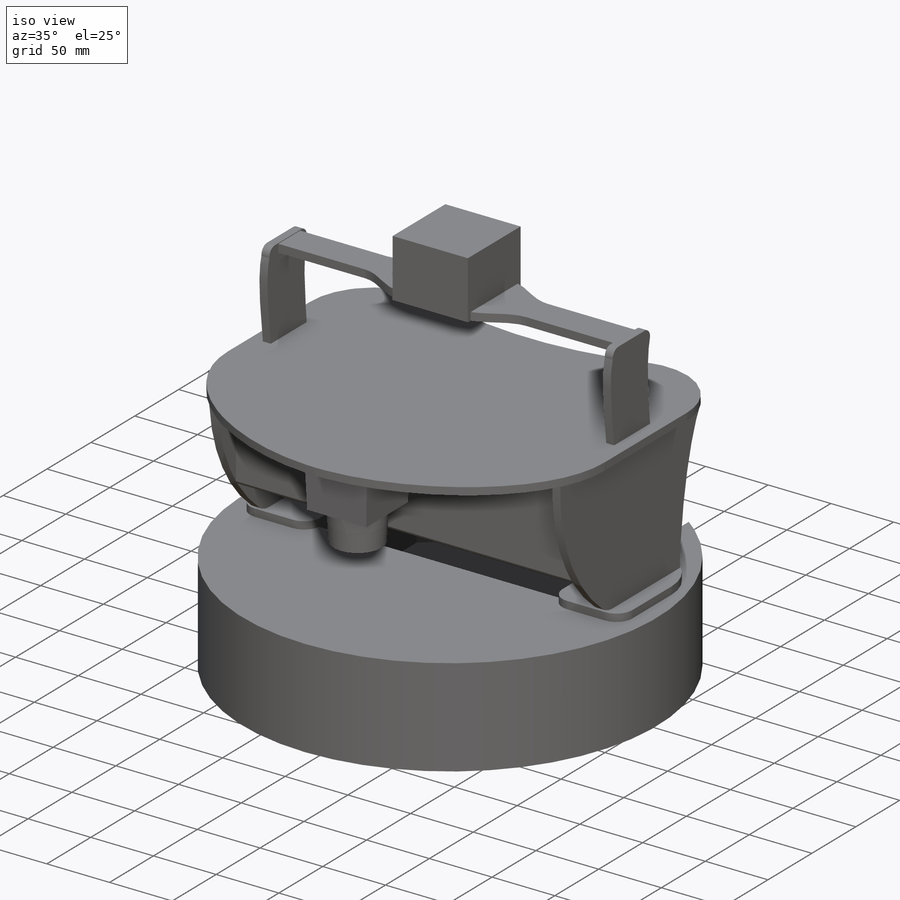
[diagram: iso view]
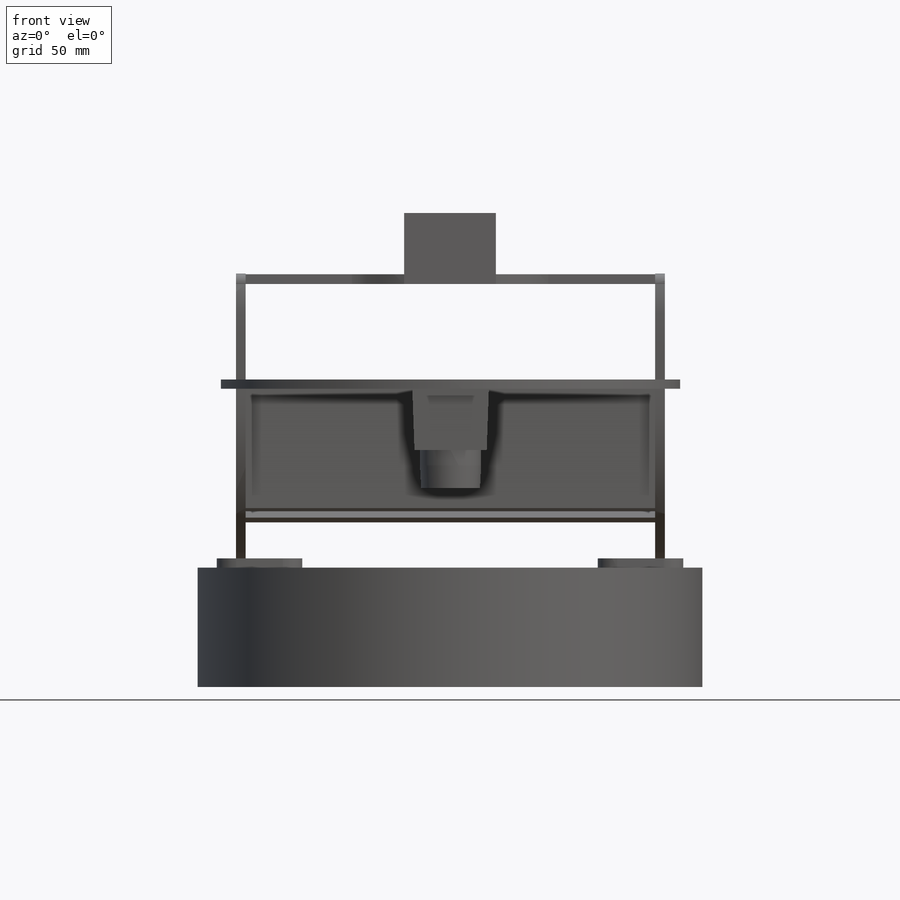
[diagram: front view]
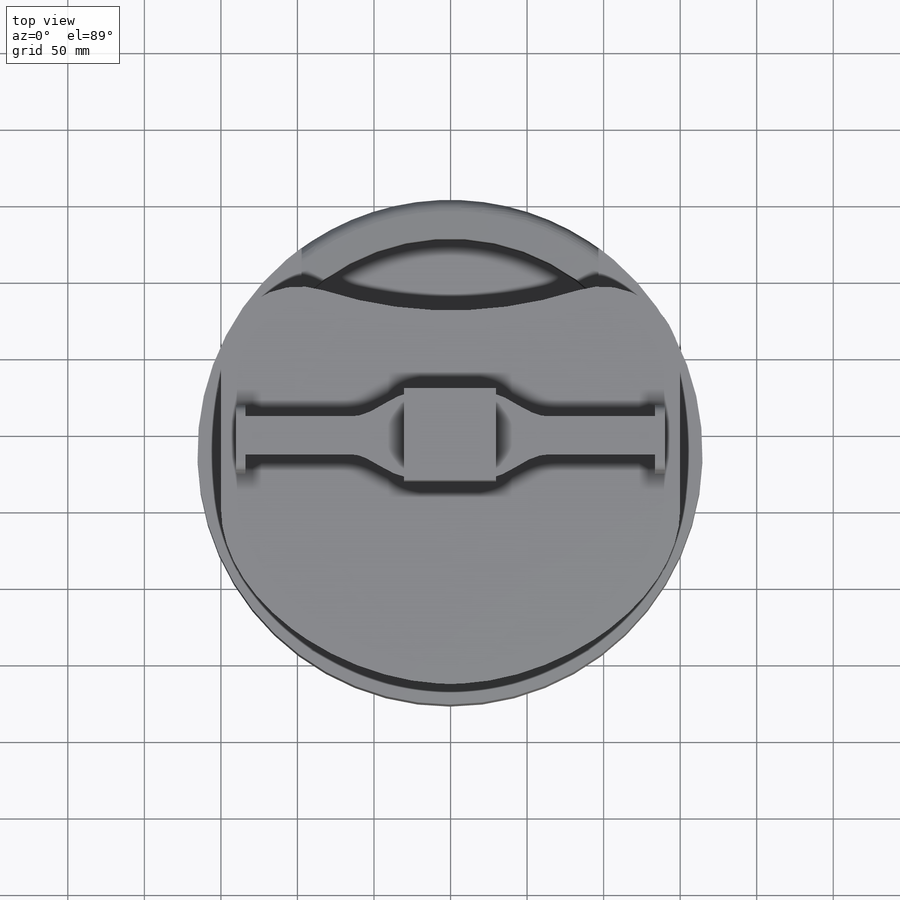
[diagram: top view]
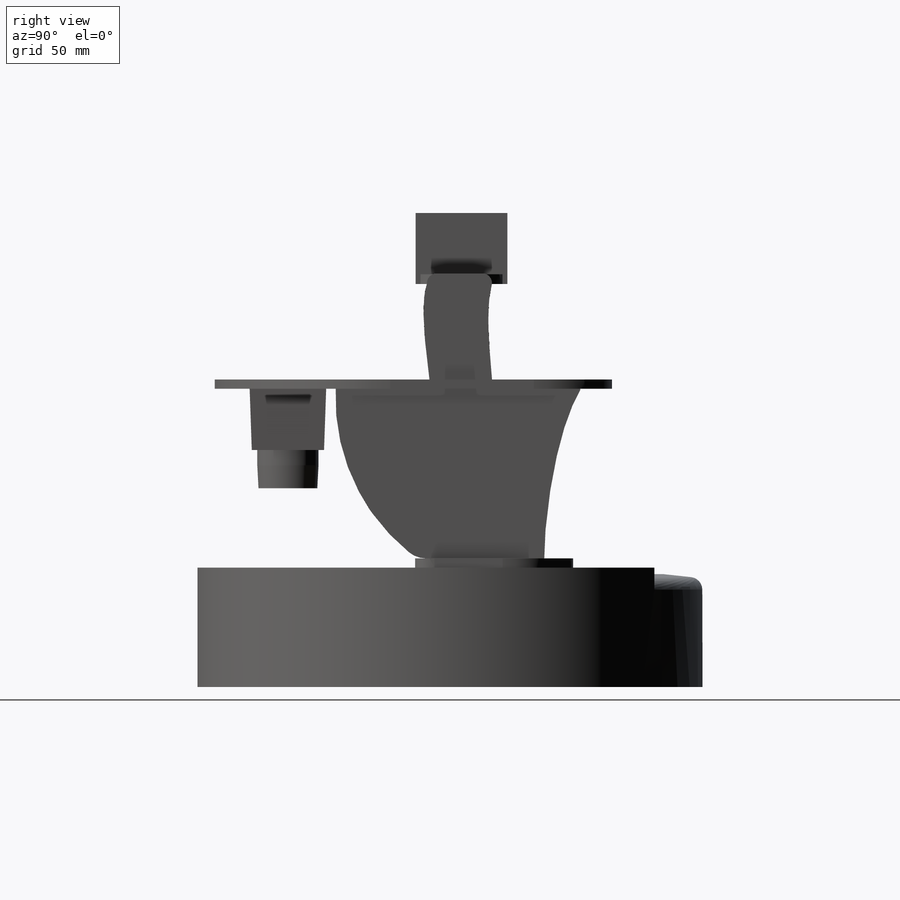
[diagram: right view]
SOLIDWORKS PART (.sldprt)
format: sldprt  version: not decoded by parser v0  size: 2,142,208 bytes
history: native  units: mm
features: move_body x27, sketch x20, extrude x13, thread x12, cut_extrude x5, material x1, plane x1, revolve x1 + 15 further entries (+49 scaffold rows collapsed; 28 parser-record rows omitted)
feature tree (172):
  scaffold x49  (default folders/planes/origin — collapsed)
  material  "Material <not specified>"
  "topbase"
  parser-record x28  (decoder bookkeeping rows leaked as tree rows — omitted from the tree; the rows remain in map.json)
  move_body  "Body-Move/Copy6"
  sketch  "Sketch18"  dims[D1=0.0mm]
  "sidewall"
  "Axes6"
  move_body  "Body-Move/Copy8"
  move_body  "Coincident10"
  move_body  "Coincident12"
  move_body  "Coincident13"
  "sidewall1"
  "Axes7"
  move_body  "Body-Move/Copy10"
  move_body  "Coincident15"
  move_body  "Coincident16"
  move_body  "Coincident17"
  "toppart"
  "Axes8"
  move_body  "Body-Move/Copy12"
  move_body  "Coincident18"
  move_body  "Coincident19"
  move_body  "Coincident20"
  "innerfront"
  "Axes9"
  move_body  "Body-Move/Copy14"
  move_body  "Coincident21"
  move_body  "Coincident23"
  move_body  "Coincident24"
  "innerback"
  "Axes10"
  move_body  "Body-Move/Copy16"
  move_body  "Coincident25"
  move_body  "Coincident26"
  move_body  "Coincident27"
  "base"
  "Axes11"
  move_body  "Body-Move/Copy18"
  move_body  "Coincident28"
  move_body  "Coincident29"
  move_body  "Coincident30"
  sketch  "Sketch1"  dims[D1=0.0mm]
  extrude  "Boss-Extrude1"  [1 undecoded]
  sketch  "Sketch2"
  extrude  "Boss-Extrude2"  [1 undecoded]
  sketch  "Sketch4"  dims[D1=5.9944mm]
  sketch  "Sketch5"  dims[D1=0.0mm]
  cut_extrude  "Cut-Extrude1"  [1 undecoded]
  extrude  "Boss-Extrude3"  [1 undecoded]
  sketch  "Sketch7"
  cut_extrude  "Cut-Extrude2"  [1 undecoded]
  sketch  "Sketch10"
  cut_extrude  "Cut-Extrude4"  [1 undecoded]
  sketch  "Sketch14"  dims[D1=0.0mm D2=0.0mm]
  cut_extrude  "Cut-Extrude7"  [1 undecoded]
  "create robot part"
  "Axes13"
  thread  "Hole Thread1-create robot part"  Diameter=12.7mm  [1 undecoded]
  thread  "Hole Thread2-create robot part"  Diameter=12.7mm  [1 undecoded]
  thread  "Hole Thread3-create robot part"  Diameter=12.7mm  [1 undecoded]
  thread  "Hole Thread4-create robot part"  Diameter=12.7mm  [1 undecoded]
  thread  "Hole Thread5-create robot part"  Diameter=6.985mm  [1 undecoded]
  thread  "Hole Thread6-create robot part"  Diameter=6.985mm  [1 undecoded]
  thread  "Hole Thread7-create robot part"  Diameter=6.985mm  [1 undecoded]
  thread  "Hole Thread8-create robot part"  Diameter=12.7mm  [1 undecoded]
  thread  "Hole Thread9-create robot part"  Diameter=6.985mm  [1 undecoded]
  thread  "Hole Thread10-create robot part"  Diameter=6.985mm  [1 undecoded]
  thread  "Hole Thread11-create robot part"  Diameter=6.985mm  [1 undecoded]
  thread  "Hole Thread12-create robot part"  Diameter=12.7mm  [1 undecoded]
  move_body  "Body-Move/Copy20"
  move_body  "Coincident32"
  sketch  "Sketch15"
  extrude  "Boss-Extrude15"  [1 undecoded]
  sketch  "Sketch9"  dims[D1=0.0mm]
  extrude  "Boss-Extrude16"  [1 undecoded]
  sketch  "Sketch16"
  cut_extrude  "Cut-Extrude8"  [1 undecoded]
  sketch  "Sketch17"
  extrude  "Boss-Extrude17"  [1 undecoded]
  sketch  "Sketch19"  dims[D1=50.0mm]
  extrude  "Boss-Extrude18"  Depth=40mm
  sketch  "Sketch20"  dims[D1=40.0mm]
  extrude  "Boss-Extrude19"  Depth=10mm
  sketch  "Sketch21"
  extrude  "Boss-Extrude20"  Depth=15mm
  sketch  "Sketch22"  dims[D1=~144.853057mm]
  extrude  "Boss-Extrude21"  Depth=78mm
  sketch  "Sketch23"
  extrude  "Boss-Extrude22"  [1 undecoded]
  sketch  "Sketch24"  dims[D1=0.0mm]
  extrude  "Boss-Extrude23"  [1 undecoded]
  plane  "Plane2"
  sketch  "Sketch28"
  revolve  "Revolve1"  Angle=90deg
  sketch  "Sketch30"  dims[D1=60.0mm]
  extrude  "Boss-Extrude24"  Depth=40mm
decode coverage: 29 of 78 modeling features carry decoded parameters; 15 rows unclassified (native names shown)
note: ~ marks probable driven/reference dimensions
note: 25 parameter values undecoded
summary: no parameter record found for 13 features
note: suppression state not decoded; provenance and decode notes live in map.json
